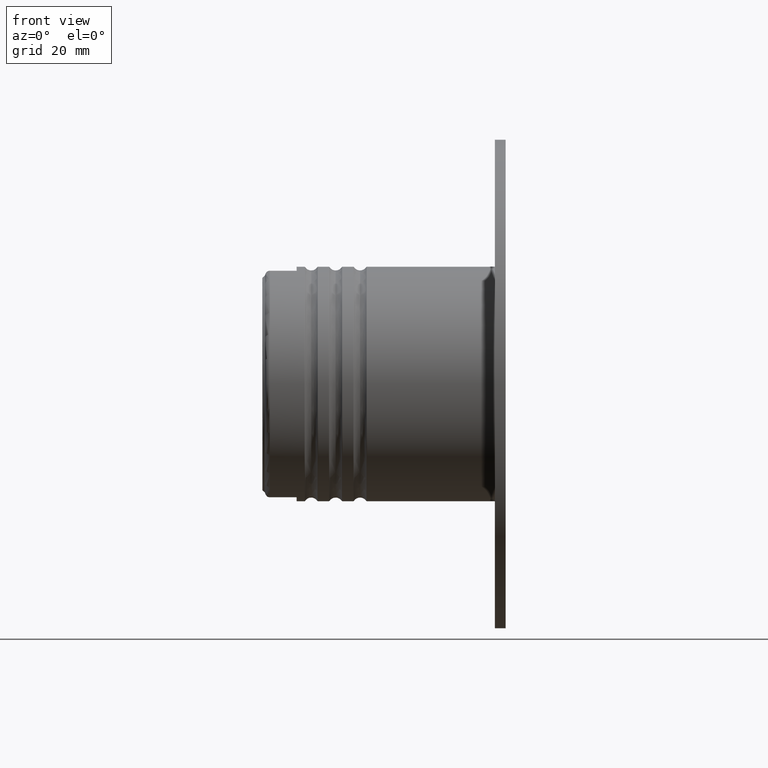
[diagram: clean part render]
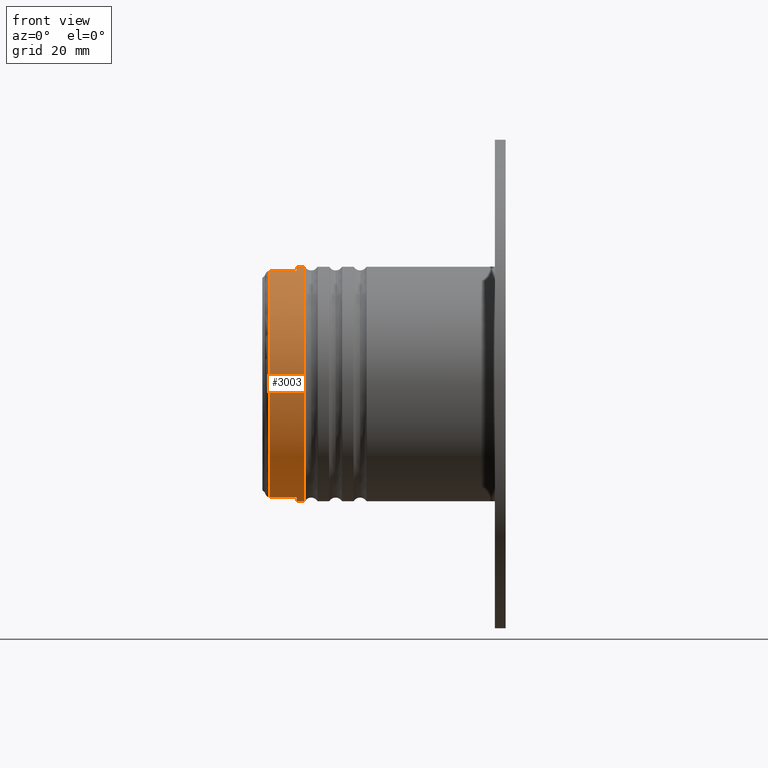
[diagram: same view with one face highlighted and labeled with its STEP entity id]
A machine part, front view. The second image highlights one B-rep face of the part: STEP entity #3003.
In plain terms, the highlighted cylindrical surface (partial cylindrical patch) has radius 24 mm, axis along (1, 0, 0).
Its self-contained STEP definition (entity closure, byte-faithful):
#1 = DIRECTION ( 'NONE',  ( 1.000000000000000000, -0.0000000000000000000, -0.0000000000000000000 ) ) ;
#166 = VERTEX_POINT ( 'NONE', #487 ) ;
#185 = EDGE_LOOP ( 'NONE', ( #4933, #5135, #4581, #3655, #5423, #4786, #5042, #4096 ) ) ;
#195 = CARTESIAN_POINT ( 'NONE',  ( -41.15951384798716362, 0.0000000000000000000, 0.0000000000000000000 ) ) ;
#233 = CIRCLE ( 'NONE', #2414, 23.99999999999998934 ) ;
#299 = VECTOR ( 'NONE', #1, 1000.000000000000000 ) ;
#397 = EDGE_CURVE ( 'NONE', #5261, #1526, #233, .T. ) ;
#427 = CARTESIAN_POINT ( 'NONE',  ( -48.24972662999999784, -6.199999999999987743, -23.18534019590827100 ) ) ;
#428 = LINE ( 'NONE', #5136, #2173 ) ;
#485 = CARTESIAN_POINT ( 'NONE',  ( -48.24972662999999784, 0.0000000000000000000, 0.0000000000000000000 ) ) ;
#487 = CARTESIAN_POINT ( 'NONE',  ( -42.74972663000000495, -6.200000000000005507, 23.18534019590826745 ) ) ;
#574 = AXIS2_PLACEMENT_3D ( 'NONE', #2109, #1243, #3385 ) ;
#680 = DIRECTION ( 'NONE',  ( 1.000000000000000000, -0.0000000000000000000, -0.0000000000000000000 ) ) ;
#843 = CARTESIAN_POINT ( 'NONE',  ( 0.0000000000000000000, 0.0000000000000000000, 0.0000000000000000000 ) ) ;
#1221 = LINE ( 'NONE', #2010, #5079 ) ;
#1243 = DIRECTION ( 'NONE',  ( -1.000000000000000000, 0.0000000000000000000, -0.0000000000000000000 ) ) ;
#1245 = CIRCLE ( 'NONE', #5420, 23.99999999999999289 ) ;
#1286 = VERTEX_POINT ( 'NONE', #2489 ) ;
#1313 = AXIS2_PLACEMENT_3D ( 'NONE', #843, #1729, #4840 ) ;
#1379 = DIRECTION ( 'NONE',  ( 0.0000000000000000000, 0.0000000000000000000, -1.000000000000000000 ) ) ;
#1384 = CARTESIAN_POINT ( 'NONE',  ( 0.0000000000000000000, 0.0000000000000000000, -23.99999999999999289 ) ) ;
#1434 = DIRECTION ( 'NONE',  ( 1.000000000000000000, -0.0000000000000000000, -0.0000000000000000000 ) ) ;
#1483 = EDGE_CURVE ( 'NONE', #2020, #1286, #4605, .T. ) ;
#1507 = CIRCLE ( 'NONE', #574, 23.99999999999999289 ) ;
#1526 = VERTEX_POINT ( 'NONE', #427 ) ;
#1548 = CARTESIAN_POINT ( 'NONE',  ( -42.74972663000000495, 0.0000000000000000000, 0.0000000000000000000 ) ) ;
#1596 = VECTOR ( 'NONE', #4766, 1000.000000000000000 ) ;
#1643 = AXIS2_PLACEMENT_3D ( 'NONE', #1548, #3806, #4698 ) ;
#1729 = DIRECTION ( 'NONE',  ( 1.000000000000000000, -0.0000000000000000000, -0.0000000000000000000 ) ) ;
#1934 = CARTESIAN_POINT ( 'NONE',  ( -42.74972663000000495, 0.0000000000000000000, -23.99999999999999289 ) ) ;
#2010 = CARTESIAN_POINT ( 'NONE',  ( 0.0000000000000000000, 2.939152317953647106E-15, 23.99999999999999289 ) ) ;
#2020 = VERTEX_POINT ( 'NONE', #1934 ) ;
#2029 = EDGE_CURVE ( 'NONE', #2020, #4692, #2855, .T. ) ;
#2072 = EDGE_CURVE ( 'NONE', #166, #4363, #1507, .T. ) ;
#2109 = CARTESIAN_POINT ( 'NONE',  ( -42.74972663000000495, 0.0000000000000000000, 0.0000000000000000000 ) ) ;
#2173 = VECTOR ( 'NONE', #680, 1000.000000000000000 ) ;
#2228 = CARTESIAN_POINT ( 'NONE',  ( -48.24972662999999784, -6.199999999999987743, 23.18534019590827100 ) ) ;
#2414 = AXIS2_PLACEMENT_3D ( 'NONE', #485, #1434, #1379 ) ;
#2481 = EDGE_CURVE ( 'NONE', #5261, #166, #428, .T. ) ;
#2489 = CARTESIAN_POINT ( 'NONE',  ( -41.15951384798716362, 0.0000000000000000000, -23.99999999999999289 ) ) ;
#2714 = CARTESIAN_POINT ( 'NONE',  ( -41.15951384798716362, 2.939152317953647106E-15, 23.99999999999999289 ) ) ;
#2823 = CARTESIAN_POINT ( 'NONE',  ( -42.74972663000000495, -6.200000000000005507, -23.18534019590827100 ) ) ;
#2855 = CIRCLE ( 'NONE', #1643, 23.99999999999999289 ) ;
#2896 = DIRECTION ( 'NONE',  ( -1.000000000000000000, -0.0000000000000000000, -0.0000000000000000000 ) ) ;
#2915 = FACE_OUTER_BOUND ( 'NONE', #185, .T. ) ;
#2923 = VERTEX_POINT ( 'NONE', #2714 ) ;
#2999 = CARTESIAN_POINT ( 'NONE',  ( 2.688821387764049813E-15, -6.199999999999987743, -23.18534019590827100 ) ) ;
#3003 = ADVANCED_FACE ( 'NONE', ( #2915 ), #3123, .T. ) ;
#3123 = CYLINDRICAL_SURFACE ( 'NONE', #1313, 23.99999999999999289 ) ;
#3299 = DIRECTION ( 'NONE',  ( 0.0000000000000000000, 0.0000000000000000000, 1.000000000000000000 ) ) ;
#3385 = DIRECTION ( 'NONE',  ( 0.0000000000000000000, 5.329070518200750605E-15, -1.000000000000000000 ) ) ;
#3655 = ORIENTED_EDGE ( 'NONE', *, *, #397, .T. ) ;
#3777 = EDGE_CURVE ( 'NONE', #4692, #1526, #5124, .T. ) ;
#3806 = DIRECTION ( 'NONE',  ( -1.000000000000000000, 0.0000000000000000000, -0.0000000000000000000 ) ) ;
#4096 = ORIENTED_EDGE ( 'NONE', *, *, #4345, .T. ) ;
#4225 = DIRECTION ( 'NONE',  ( 1.000000000000000000, -0.0000000000000000000, -0.0000000000000000000 ) ) ;
#4227 = CARTESIAN_POINT ( 'NONE',  ( -42.74972663000000495, 2.939152317953647106E-15, 23.99999999999999289 ) ) ;
#4345 = EDGE_CURVE ( 'NONE', #1286, #2923, #1245, .T. ) ;
#4363 = VERTEX_POINT ( 'NONE', #4227 ) ;
#4581 = ORIENTED_EDGE ( 'NONE', *, *, #2481, .F. ) ;
#4605 = LINE ( 'NONE', #1384, #299 ) ;
#4692 = VERTEX_POINT ( 'NONE', #2823 ) ;
#4698 = DIRECTION ( 'NONE',  ( 0.0000000000000000000, 0.0000000000000000000, -1.000000000000000000 ) ) ;
#4766 = DIRECTION ( 'NONE',  ( -1.000000000000000000, 0.0000000000000000000, 0.0000000000000000000 ) ) ;
#4786 = ORIENTED_EDGE ( 'NONE', *, *, #2029, .F. ) ;
#4840 = DIRECTION ( 'NONE',  ( 0.0000000000000000000, 0.0000000000000000000, -1.000000000000000000 ) ) ;
#4933 = ORIENTED_EDGE ( 'NONE', *, *, #5105, .F. ) ;
#5042 = ORIENTED_EDGE ( 'NONE', *, *, #1483, .T. ) ;
#5079 = VECTOR ( 'NONE', #4225, 1000.000000000000000 ) ;
#5105 = EDGE_CURVE ( 'NONE', #4363, #2923, #1221, .T. ) ;
#5124 = LINE ( 'NONE', #2999, #1596 ) ;
#5135 = ORIENTED_EDGE ( 'NONE', *, *, #2072, .F. ) ;
#5136 = CARTESIAN_POINT ( 'NONE',  ( 2.688821387764049813E-15, -6.199999999999987743, 23.18534019590827100 ) ) ;
#5261 = VERTEX_POINT ( 'NONE', #2228 ) ;
#5420 = AXIS2_PLACEMENT_3D ( 'NONE', #195, #2896, #3299 ) ;
#5423 = ORIENTED_EDGE ( 'NONE', *, *, #3777, .F. ) ;